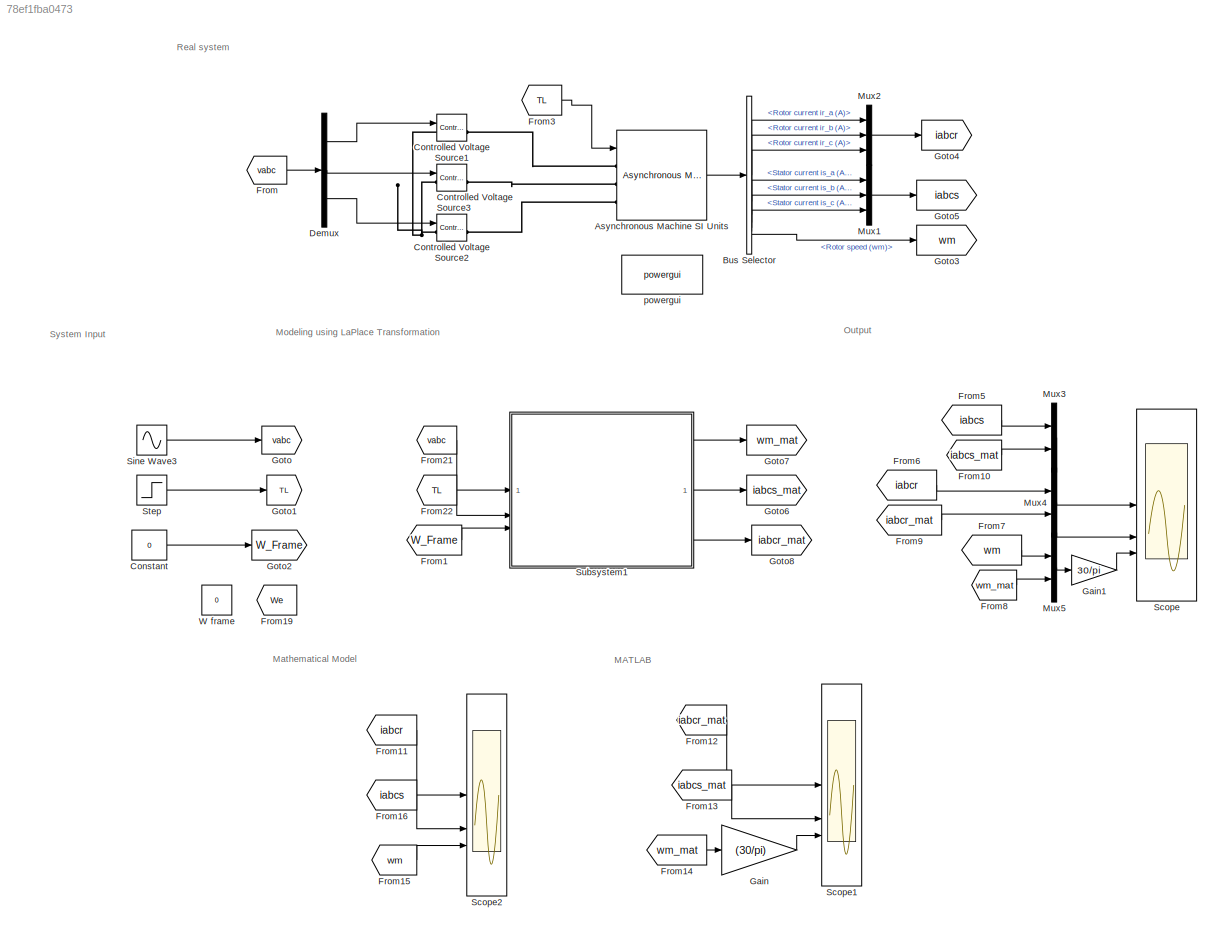
MODEL slx_78ef1fba0473
KIND model
CONFIG AbsTol = auto
CONFIG EnableMultiTasking = off
CONFIG FixedStep = auto
CONFIG InitFcn = Rs=0.5968;\nLls=0.0003495;\nRr=0.6258;\nLlr=0.005473;\nLm=0.0354;\nLs=Lls+Lm;\nLr=Llr+Lm;\nJ=0.05;\nB=0.005879;\nP=4;\n
CONFIG MaxStep = .0001
CONFIG MinStep = auto
CONFIG RelTol = 1e-3
CONFIG SampleTimeConstraint = Unconstrained
CONFIG SolverName = ode23t
CONFIG StartTime = 0.0
CONFIG StopTime = 2
BLOCK [Reference] Asynchronous Machine SI Units  REF=spsAsynchronousMachineSIUnitsLib/Asynchronous Machine
SI Units
  SourceBlock = spsAsynchronousMachineSIUnitsLib/Asynchronous Machine\nSI Units
  SourceType = Asynchronous Machine
BLOCK [BusSelector] Bus Selector
  OutputSignals = Rotor measurements.Rotor current ir_a (A),Rotor measurements.Rotor current ir_b (A),Rotor measurements.Rotor current ir_c (A),Stator measurements.Stator current is_a (A),Stator measurements.Stator current is_b (A),Stator measurements.Stator current is_c (A),Mechanical.Rotor speed (wm)
BLOCK [Constant] Constant
  Value = 0
BLOCK [Reference] Controlled Voltage Source1  REF=spsControlledVoltageSourceLib/Controlled Voltage Source
  SourceBlock = spsControlledVoltageSourceLib/Controlled Voltage Source
  SourceType = Controlled Voltage Source
BLOCK [Reference] Controlled Voltage Source2  REF=spsControlledVoltageSourceLib/Controlled Voltage Source
  SourceBlock = spsControlledVoltageSourceLib/Controlled Voltage Source
  SourceType = Controlled Voltage Source
BLOCK [Reference] Controlled Voltage Source3  REF=spsControlledVoltageSourceLib/Controlled Voltage Source
  SourceBlock = spsControlledVoltageSourceLib/Controlled Voltage Source
  SourceType = Controlled Voltage Source
BLOCK [Demux] Demux
  Outputs = 3
BLOCK [From] From
  GotoTag = vabc
BLOCK [From] From1
  GotoTag = W_Frame
BLOCK [From] From10
  GotoTag = iabcs_mat
BLOCK [From] From11
  GotoTag = iabcr
BLOCK [From] From12
  GotoTag = iabcr_mat
BLOCK [From] From13
  GotoTag = iabcs_mat
BLOCK [From] From14
  GotoTag = wm_mat
BLOCK [From] From15
  GotoTag = wm
BLOCK [From] From16
  GotoTag = iabcs
BLOCK [From] From19
  Commented = on
  GotoTag = We
BLOCK [From] From21
  GotoTag = vabc
BLOCK [From] From22
  GotoTag = TL
BLOCK [From] From3
  GotoTag = TL
BLOCK [From] From5
  GotoTag = iabcs
BLOCK [From] From6
  GotoTag = iabcr
BLOCK [From] From7
  GotoTag = wm
BLOCK [From] From8
  GotoTag = wm_mat
BLOCK [From] From9
  GotoTag = iabcr_mat
BLOCK [Gain] Gain
  Gain = (30/pi)
BLOCK [Gain] Gain1
  Gain = 30/pi
BLOCK [Goto] Goto
  GotoTag = vabc
BLOCK [Goto] Goto1
  GotoTag = TL
BLOCK [Goto] Goto2
  GotoTag = W_Frame
BLOCK [Goto] Goto3
  GotoTag = wm
BLOCK [Goto] Goto4
  GotoTag = iabcr
BLOCK [Goto] Goto5
  GotoTag = iabcs
BLOCK [Goto] Goto6
  GotoTag = iabcs_mat
BLOCK [Goto] Goto7
  GotoTag = wm_mat
BLOCK [Goto] Goto8
  GotoTag = iabcr_mat
BLOCK [Mux] Mux1
  DisplayOption = bar
  Inputs = 3
BLOCK [Mux] Mux2
  DisplayOption = bar
  Inputs = 3
BLOCK [Mux] Mux3
  DisplayOption = bar
  Inputs = 2
BLOCK [Mux] Mux4
  DisplayOption = bar
  Inputs = 2
BLOCK [Mux] Mux5
  DisplayOption = bar
  Inputs = 2
BLOCK [Scope] Scope
  Floating = off
  NumInputPorts = 3
  ScopeSpecificationString = Simulink.scopes.TimeScopeBlockCfg('CurrentConfiguration', extmgr.ConfigurationSet(extmgr.Configuration('Core','General UI',true),extmgr.Configuration('Core','Source UI',true),extmgr.Configuration('Sources','WiredSimulink',true,'DataLoggingVariableName','ScopeData1'),extmgr.Configuration('Visuals','Time Domain',true,'SerializedDisplays',{struct('MinYLimReal','-219.28097','MaxYLimReal','233.67759','...<+3911ch>
BLOCK [Scope] Scope1
  Floating = off
  NumInputPorts = 3
  ScopeSpecificationString = Simulink.scopes.TimeScopeBlockCfg('CurrentConfiguration', extmgr.ConfigurationSet(extmgr.Configuration('Core','General UI',true),extmgr.Configuration('Core','Source UI',true),extmgr.Configuration('Sources','WiredSimulink',true,'DataLoggingVariableName','ScopeData1'),extmgr.Configuration('Visuals','Time Domain',true,'SerializedDisplays',{struct('MinYLimReal','-190.17977','MaxYLimReal','175.40239','...<+2888ch>
BLOCK [Scope] Scope2
  Floating = off
  NumInputPorts = 3
  ScopeSpecificationString = Simulink.scopes.TimeScopeBlockCfg('CurrentConfiguration', extmgr.ConfigurationSet(extmgr.Configuration('Core','General UI',true),extmgr.Configuration('Core','Source UI',true),extmgr.Configuration('Sources','WiredSimulink',true,'DataLoggingVariableName','ScopeData2'),extmgr.Configuration('Visuals','Time Domain',true,'SerializedDisplays',{struct('MinYLimReal','-11343.48724','MaxYLimReal','11365.4742...<+2971ch>
BLOCK [Sin] Sine Wave3
  Amplitude = Vin_Amp
  Frequency = Freq
  Phase = [0 -2*pi/3 2*pi/3]
  SampleTime = 0
BLOCK [Step] Step
  SampleTime = 0
  Time = 0
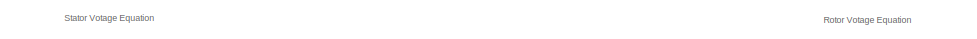
[diagram: Subsystem1 - part 1/3, top center region]
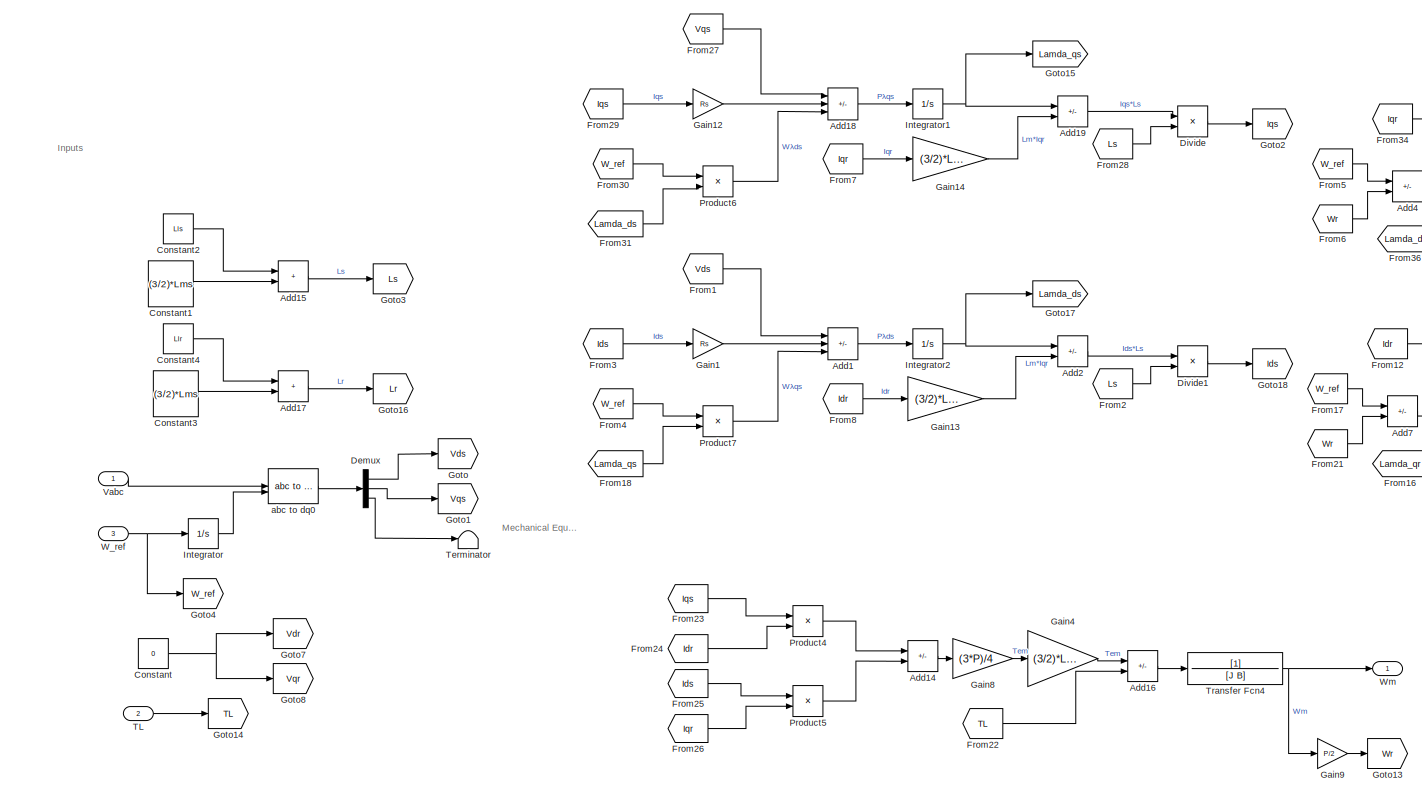
[diagram: Subsystem1 - part 2/3, center side, full height]
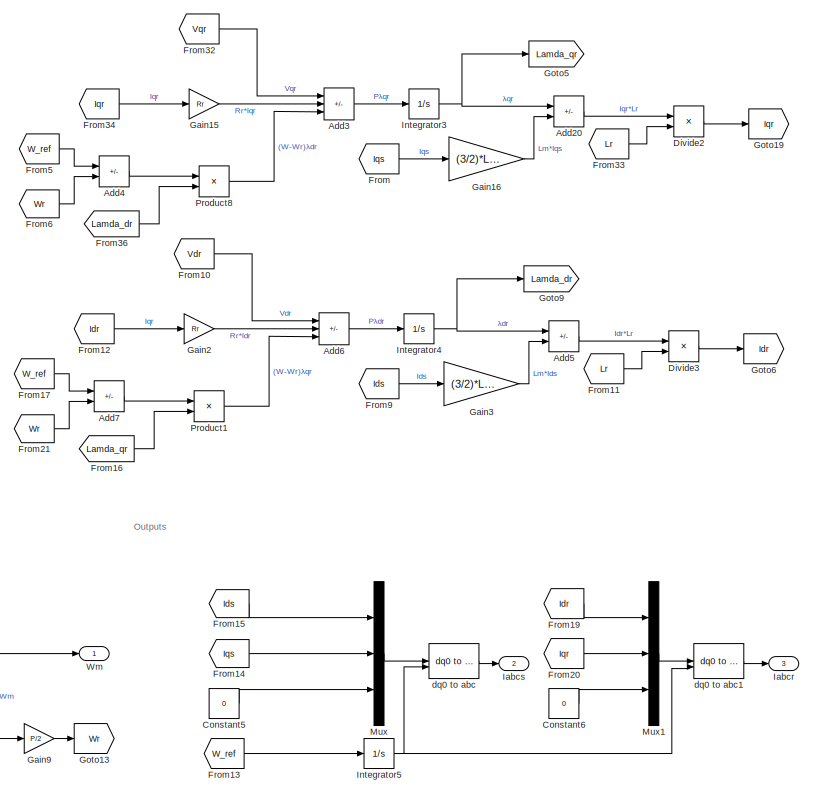
[diagram: Subsystem1 - part 3/3, right side, full height]
BLOCK [SubSystem] Subsystem1
BLOCK [Sum] Subsystem1/Add1
  IconShape = rectangular
  Inputs = +-+
BLOCK [Sum] Subsystem1/Add14
  IconShape = rectangular
  Inputs = +-
BLOCK [Sum] Subsystem1/Add15
  IconShape = rectangular
BLOCK [Sum] Subsystem1/Add16
  IconShape = rectangular
  Inputs = +-
BLOCK [Sum] Subsystem1/Add17
  IconShape = rectangular
BLOCK [Sum] Subsystem1/Add18
  IconShape = rectangular
  Inputs = +--
BLOCK [Sum] Subsystem1/Add19
  IconShape = rectangular
  Inputs = +-
BLOCK [Sum] Subsystem1/Add2
  IconShape = rectangular
  Inputs = +-
BLOCK [Sum] Subsystem1/Add20
  IconShape = rectangular
  Inputs = +-
BLOCK [Sum] Subsystem1/Add3
  IconShape = rectangular
  Inputs = +--
BLOCK [Sum] Subsystem1/Add4
  IconShape = rectangular
  Inputs = +-
BLOCK [Sum] Subsystem1/Add5
  IconShape = rectangular
  Inputs = +-
BLOCK [Sum] Subsystem1/Add6
  IconShape = rectangular
  Inputs = +-+
BLOCK [Sum] Subsystem1/Add7
  IconShape = rectangular
  Inputs = +-
BLOCK [Constant] Subsystem1/Constant
  Value = 0
BLOCK [Constant] Subsystem1/Constant1
  Value = (3/2)*Lms
BLOCK [Constant] Subsystem1/Constant2
  Value = Lls
BLOCK [Constant] Subsystem1/Constant3
  Value = (3/2)*Lms
BLOCK [Constant] Subsystem1/Constant4
  Value = Llr
BLOCK [Constant] Subsystem1/Constant5
  Value = 0
BLOCK [Constant] Subsystem1/Constant6
  Value = 0
BLOCK [Demux] Subsystem1/Demux
  Outputs = 3
BLOCK [Product] Subsystem1/Divide
  Inputs = */
BLOCK [Product] Subsystem1/Divide1
  Inputs = */
BLOCK [Product] Subsystem1/Divide2
  Inputs = */
BLOCK [Product] Subsystem1/Divide3
  Inputs = */
BLOCK [From] Subsystem1/From
  GotoTag = Iqs
BLOCK [From] Subsystem1/From1
  GotoTag = Vds
BLOCK [From] Subsystem1/From10
  GotoTag = Vdr
BLOCK [From] Subsystem1/From11
  GotoTag = Lr
BLOCK [From] Subsystem1/From12
  GotoTag = Idr
BLOCK [From] Subsystem1/From13
  GotoTag = W_ref
BLOCK [From] Subsystem1/From14
  GotoTag = Iqs
BLOCK [From] Subsystem1/From15
  GotoTag = Ids
BLOCK [From] Subsystem1/From16
  GotoTag = Lamda_qr
BLOCK [From] Subsystem1/From17
  GotoTag = W_ref
BLOCK [From] Subsystem1/From18
  GotoTag = Lamda_qs
BLOCK [From] Subsystem1/From19
  GotoTag = Idr
BLOCK [From] Subsystem1/From2
  GotoTag = Ls
BLOCK [From] Subsystem1/From20
  GotoTag = Iqr
BLOCK [From] Subsystem1/From21
  GotoTag = Wr
BLOCK [From] Subsystem1/From22
  GotoTag = TL
BLOCK [From] Subsystem1/From23
  GotoTag = Iqs
BLOCK [From] Subsystem1/From24
  GotoTag = Idr
BLOCK [From] Subsystem1/From25
  GotoTag = Ids
BLOCK [From] Subsystem1/From26
  GotoTag = Iqr
BLOCK [From] Subsystem1/From27
  GotoTag = Vqs
BLOCK [From] Subsystem1/From28
  GotoTag = Ls
BLOCK [From] Subsystem1/From29
  GotoTag = Iqs
BLOCK [From] Subsystem1/From3
  GotoTag = Ids
BLOCK [From] Subsystem1/From30
  GotoTag = W_ref
BLOCK [From] Subsystem1/From31
  GotoTag = Lamda_ds
BLOCK [From] Subsystem1/From32
  GotoTag = Vqr
BLOCK [From] Subsystem1/From33
  GotoTag = Lr
BLOCK [From] Subsystem1/From34
  GotoTag = Iqr
BLOCK [From] Subsystem1/From36
  GotoTag = Lamda_dr
BLOCK [From] Subsystem1/From4
  GotoTag = W_ref
BLOCK [From] Subsystem1/From5
  GotoTag = W_ref
BLOCK [From] Subsystem1/From6
  GotoTag = Wr
BLOCK [From] Subsystem1/From7
  GotoTag = Iqr
BLOCK [From] Subsystem1/From8
  GotoTag = Idr
BLOCK [From] Subsystem1/From9
  GotoTag = Ids
BLOCK [Gain] Subsystem1/Gain1
  Gain = Rs
BLOCK [Gain] Subsystem1/Gain12
  Gain = Rs
BLOCK [Gain] Subsystem1/Gain13
  Gain = (3/2)*Lms
BLOCK [Gain] Subsystem1/Gain14
  Gain = (3/2)*Lms
BLOCK [Gain] Subsystem1/Gain15
  Gain = Rr
BLOCK [Gain] Subsystem1/Gain16
  Gain = (3/2)*Lms
BLOCK [Gain] Subsystem1/Gain2
  Gain = Rr
BLOCK [Gain] Subsystem1/Gain3
  Gain = (3/2)*Lms
BLOCK [Gain] Subsystem1/Gain4
  Gain = (3/2)*Lms
BLOCK [Gain] Subsystem1/Gain8
  Gain = (3*P)/4
BLOCK [Gain] Subsystem1/Gain9
  Gain = P/2
BLOCK [Goto] Subsystem1/Goto
  GotoTag = Vds
BLOCK [Goto] Subsystem1/Goto1
  GotoTag = Vqs
BLOCK [Goto] Subsystem1/Goto13
  GotoTag = Wr
BLOCK [Goto] Subsystem1/Goto14
  GotoTag = TL
BLOCK [Goto] Subsystem1/Goto15
  GotoTag = Lamda_qs
BLOCK [Goto] Subsystem1/Goto16
  GotoTag = Lr
BLOCK [Goto] Subsystem1/Goto17
  GotoTag = Lamda_ds
BLOCK [Goto] Subsystem1/Goto18
  GotoTag = Ids
BLOCK [Goto] Subsystem1/Goto19
  GotoTag = Iqr
BLOCK [Goto] Subsystem1/Goto2
  GotoTag = Iqs
BLOCK [Goto] Subsystem1/Goto3
  GotoTag = Ls
BLOCK [Goto] Subsystem1/Goto4
  GotoTag = W_ref
BLOCK [Goto] Subsystem1/Goto5
  GotoTag = Lamda_qr
BLOCK [Goto] Subsystem1/Goto6
  GotoTag = Idr
BLOCK [Goto] Subsystem1/Goto7
  GotoTag = Vdr
BLOCK [Goto] Subsystem1/Goto8
  GotoTag = Vqr
BLOCK [Goto] Subsystem1/Goto9
  GotoTag = Lamda_dr
BLOCK [Outport] Subsystem1/Iabcr
  Port = 3
BLOCK [Outport] Subsystem1/Iabcs
  Port = 2
BLOCK [Integrator] Subsystem1/Integrator
BLOCK [Integrator] Subsystem1/Integrator1
BLOCK [Integrator] Subsystem1/Integrator2
BLOCK [Integrator] Subsystem1/Integrator3
BLOCK [Integrator] Subsystem1/Integrator4
BLOCK [Integrator] Subsystem1/Integrator5
BLOCK [Mux] Subsystem1/Mux
  DisplayOption = bar
  Inputs = 3
BLOCK [Mux] Subsystem1/Mux1
  DisplayOption = bar
  Inputs = 3
BLOCK [Product] Subsystem1/Product1
BLOCK [Product] Subsystem1/Product4
BLOCK [Product] Subsystem1/Product5
BLOCK [Product] Subsystem1/Product6
BLOCK [Product] Subsystem1/Product7
BLOCK [Product] Subsystem1/Product8
BLOCK [Inport] Subsystem1/TL
  Port = 2
BLOCK [Terminator] Subsystem1/Terminator
BLOCK [TransferFcn] Subsystem1/Transfer Fcn4
  Denominator = [J B]
BLOCK [Inport] Subsystem1/Vabc
BLOCK [Inport] Subsystem1/W_ref
  Port = 3
BLOCK [Outport] Subsystem1/Wm
BLOCK [Reference] Subsystem1/abc to dq0  REF=spsabctodq0Lib/abc to dq0
  LibrarySourceBlock = sps_lib/Control/abc to dq0
  SourceBlock = spsabctodq0Lib/abc to dq0
  SourceType = abc to dq0 Transformation
BLOCK [Reference] Subsystem1/dq0 to abc  REF=spsdq0toabcLib/dq0 to abc
  LibrarySourceBlock = sps_lib/Control/dq0 to abc
  SourceBlock = spsdq0toabcLib/dq0 to abc
  SourceType = dq0 to abc Transformation
BLOCK [Reference] Subsystem1/dq0 to abc1  REF=spsdq0toabcLib/dq0 to abc
  LibrarySourceBlock = sps_lib/Control/dq0 to abc
  SourceBlock = spsdq0toabcLib/dq0 to abc
  SourceType = dq0 to abc Transformation
BLOCK [Constant] W frame
  Commented = on
  Value = 0
BLOCK [Reference] powergui  REF=spspowerguiLib/powergui
  Priority = 1
  SourceBlock = spspowerguiLib/powergui
  SourceType = PSB option menu block
ANNOTATION (root): Real system
ANNOTATION (root): Output
ANNOTATION (root): Modeling using LaPlace Transformation
ANNOTATION (root): Mathematical Model
ANNOTATION (root): MATLAB
ANNOTATION (root): System Input
ANNOTATION Subsystem1: Mechanical Equation
ANNOTATION Subsystem1: Outputs
ANNOTATION Subsystem1: Inputs
ANNOTATION Subsystem1: Rotor Votage Equation
ANNOTATION Subsystem1: Stator Votage Equation
LINE Asynchronous Machine SI Units:1 -> Bus Selector:1
LINE Bus Selector:1 -> Mux2:1
LINE Bus Selector:2 -> Mux2:2
LINE Bus Selector:3 -> Mux2:3
LINE Bus Selector:4 -> Mux1:1
LINE Bus Selector:5 -> Mux1:2
LINE Bus Selector:6 -> Mux1:3
LINE Bus Selector:7 -> Goto3:1
LINE Constant:1 -> Goto2:1
LINE Demux:1 -> Controlled Voltage Source1:1
LINE Demux:2 -> Controlled Voltage Source3:1
LINE Demux:3 -> Controlled Voltage Source2:1
LINE From10:1 -> Mux3:2
LINE From11:1 -> Scope2:1
LINE From12:1 -> Scope1:1
LINE From13:1 -> Scope1:2
LINE From14:1 -> Gain:1
LINE From15:1 -> Scope2:3
LINE From16:1 -> Scope2:2
LINE From1:1 -> Subsystem1:3
LINE From21:1 -> Subsystem1:1
LINE From22:1 -> Subsystem1:2
LINE From3:1 -> Asynchronous Machine SI Units:1
LINE From5:1 -> Mux3:1
LINE From6:1 -> Mux4:1
LINE From7:1 -> Mux5:1
LINE From8:1 -> Mux5:2
LINE From9:1 -> Mux4:2
LINE From:1 -> Demux:1
LINE Gain1:1 -> Scope:3
LINE Gain:1 -> Scope1:3
LINE Mux1:1 -> Goto5:1
LINE Mux2:1 -> Goto4:1
LINE Mux3:1 -> Scope:1
LINE Mux4:1 -> Scope:2
LINE Mux5:1 -> Gain1:1
LINE Sine Wave3:1 -> Goto:1
LINE Step:1 -> Goto1:1
LINE Subsystem1/Add14:1 -> Subsystem1/Gain8:1
LINE Subsystem1/Add15:1 -> Subsystem1/Goto3:1
LINE Subsystem1/Add16:1 -> Subsystem1/Transfer Fcn4:1
LINE Subsystem1/Add17:1 -> Subsystem1/Goto16:1
LINE Subsystem1/Add18:1 -> Subsystem1/Integrator1:1
LINE Subsystem1/Add19:1 -> Subsystem1/Divide:1
LINE Subsystem1/Add1:1 -> Subsystem1/Integrator2:1
LINE Subsystem1/Add20:1 -> Subsystem1/Divide2:1
LINE Subsystem1/Add2:1 -> Subsystem1/Divide1:1
LINE Subsystem1/Add3:1 -> Subsystem1/Integrator3:1
LINE Subsystem1/Add4:1 -> Subsystem1/Product8:1
LINE Subsystem1/Add5:1 -> Subsystem1/Divide3:1
LINE Subsystem1/Add6:1 -> Subsystem1/Integrator4:1
LINE Subsystem1/Add7:1 -> Subsystem1/Product1:1
LINE Subsystem1/Constant1:1 -> Subsystem1/Add15:2
LINE Subsystem1/Constant2:1 -> Subsystem1/Add15:1
LINE Subsystem1/Constant3:1 -> Subsystem1/Add17:2
LINE Subsystem1/Constant4:1 -> Subsystem1/Add17:1
LINE Subsystem1/Constant5:1 -> Subsystem1/Mux:3
LINE Subsystem1/Constant6:1 -> Subsystem1/Mux1:3
NET Subsystem1/Constant:1 -> Subsystem1/Goto7:1, Subsystem1/Goto8:1
LINE Subsystem1/Demux:1 -> Subsystem1/Goto:1
LINE Subsystem1/Demux:2 -> Subsystem1/Goto1:1
LINE Subsystem1/Demux:3 -> Subsystem1/Terminator:1
LINE Subsystem1/Divide1:1 -> Subsystem1/Goto18:1
LINE Subsystem1/Divide2:1 -> Subsystem1/Goto19:1
LINE Subsystem1/Divide3:1 -> Subsystem1/Goto6:1
LINE Subsystem1/Divide:1 -> Subsystem1/Goto2:1
LINE Subsystem1/From10:1 -> Subsystem1/Add6:1
LINE Subsystem1/From11:1 -> Subsystem1/Divide3:2
LINE Subsystem1/From12:1 -> Subsystem1/Gain2:1
LINE Subsystem1/From13:1 -> Subsystem1/Integrator5:1
LINE Subsystem1/From14:1 -> Subsystem1/Mux:2
LINE Subsystem1/From15:1 -> Subsystem1/Mux:1
LINE Subsystem1/From16:1 -> Subsystem1/Product1:2
LINE Subsystem1/From17:1 -> Subsystem1/Add7:1
LINE Subsystem1/From18:1 -> Subsystem1/Product7:2
LINE Subsystem1/From19:1 -> Subsystem1/Mux1:1
LINE Subsystem1/From1:1 -> Subsystem1/Add1:1
LINE Subsystem1/From20:1 -> Subsystem1/Mux1:2
LINE Subsystem1/From21:1 -> Subsystem1/Add7:2
LINE Subsystem1/From22:1 -> Subsystem1/Add16:2
LINE Subsystem1/From23:1 -> Subsystem1/Product4:1
LINE Subsystem1/From24:1 -> Subsystem1/Product4:2
LINE Subsystem1/From25:1 -> Subsystem1/Product5:1
LINE Subsystem1/From26:1 -> Subsystem1/Product5:2
LINE Subsystem1/From27:1 -> Subsystem1/Add18:1
LINE Subsystem1/From28:1 -> Subsystem1/Divide:2
LINE Subsystem1/From29:1 -> Subsystem1/Gain12:1
LINE Subsystem1/From2:1 -> Subsystem1/Divide1:2
LINE Subsystem1/From30:1 -> Subsystem1/Product6:1
LINE Subsystem1/From31:1 -> Subsystem1/Product6:2
LINE Subsystem1/From32:1 -> Subsystem1/Add3:1
LINE Subsystem1/From33:1 -> Subsystem1/Divide2:2
LINE Subsystem1/From34:1 -> Subsystem1/Gain15:1
LINE Subsystem1/From36:1 -> Subsystem1/Product8:2
LINE Subsystem1/From3:1 -> Subsystem1/Gain1:1
LINE Subsystem1/From4:1 -> Subsystem1/Product7:1
LINE Subsystem1/From5:1 -> Subsystem1/Add4:1
LINE Subsystem1/From6:1 -> Subsystem1/Add4:2
LINE Subsystem1/From7:1 -> Subsystem1/Gain14:1
LINE Subsystem1/From8:1 -> Subsystem1/Gain13:1
LINE Subsystem1/From9:1 -> Subsystem1/Gain3:1
LINE Subsystem1/From:1 -> Subsystem1/Gain16:1
LINE Subsystem1/Gain12:1 -> Subsystem1/Add18:2
LINE Subsystem1/Gain13:1 -> Subsystem1/Add2:2
LINE Subsystem1/Gain14:1 -> Subsystem1/Add19:2
LINE Subsystem1/Gain15:1 -> Subsystem1/Add3:2
LINE Subsystem1/Gain16:1 -> Subsystem1/Add20:2
LINE Subsystem1/Gain1:1 -> Subsystem1/Add1:2
LINE Subsystem1/Gain2:1 -> Subsystem1/Add6:2
LINE Subsystem1/Gain3:1 -> Subsystem1/Add5:2
LINE Subsystem1/Gain4:1 -> Subsystem1/Add16:1
LINE Subsystem1/Gain8:1 -> Subsystem1/Gain4:1
LINE Subsystem1/Gain9:1 -> Subsystem1/Goto13:1
NET Subsystem1/Integrator1:1 -> Subsystem1/Add19:1, Subsystem1/Goto15:1
NET Subsystem1/Integrator2:1 -> Subsystem1/Add2:1, Subsystem1/Goto17:1
NET Subsystem1/Integrator3:1 -> Subsystem1/Add20:1, Subsystem1/Goto5:1
NET Subsystem1/Integrator4:1 -> Subsystem1/Add5:1, Subsystem1/Goto9:1
NET Subsystem1/Integrator5:1 -> Subsystem1/dq0 to abc1:2, Subsystem1/dq0 to abc:2
LINE Subsystem1/Integrator:1 -> Subsystem1/abc to dq0:2
LINE Subsystem1/Mux1:1 -> Subsystem1/dq0 to abc1:1
LINE Subsystem1/Mux:1 -> Subsystem1/dq0 to abc:1
LINE Subsystem1/Product1:1 -> Subsystem1/Add6:3
LINE Subsystem1/Product4:1 -> Subsystem1/Add14:1
LINE Subsystem1/Product5:1 -> Subsystem1/Add14:2
LINE Subsystem1/Product6:1 -> Subsystem1/Add18:3
LINE Subsystem1/Product7:1 -> Subsystem1/Add1:3
LINE Subsystem1/Product8:1 -> Subsystem1/Add3:3
LINE Subsystem1/TL:1 -> Subsystem1/Goto14:1
NET Subsystem1/Transfer Fcn4:1 -> Subsystem1/Gain9:1, Subsystem1/Wm:1
LINE Subsystem1/Vabc:1 -> Subsystem1/abc to dq0:1
NET Subsystem1/W_ref:1 -> Subsystem1/Goto4:1, Subsystem1/Integrator:1
LINE Subsystem1/abc to dq0:1 -> Subsystem1/Demux:1
LINE Subsystem1/dq0 to abc1:1 -> Subsystem1/Iabcr:1
LINE Subsystem1/dq0 to abc:1 -> Subsystem1/Iabcs:1
LINE Subsystem1:1 -> Goto7:1
LINE Subsystem1:2 -> Goto6:1
LINE Subsystem1:3 -> Goto8:1
PLINE Asynchronous Machine SI Units:LConn1 -- Controlled Voltage Source1:RConn1
PLINE Asynchronous Machine SI Units:LConn2 -- Controlled Voltage Source3:RConn1
PLINE Asynchronous Machine SI Units:LConn3 -- Controlled Voltage Source2:RConn1
PNET net1: Controlled Voltage Source1:LConn1 -- Controlled Voltage Source2:LConn1 -- Controlled Voltage Source3:LConn1
note: NET lines group one-source signal fan-out (src -> all destinations, sorted); 1:1 wires keep LINE; PNET lines group multi-terminal physical nets as a canonical sorted terminal list (undirected conserving connections); 2-terminal nets keep the pairwise PLINE form
